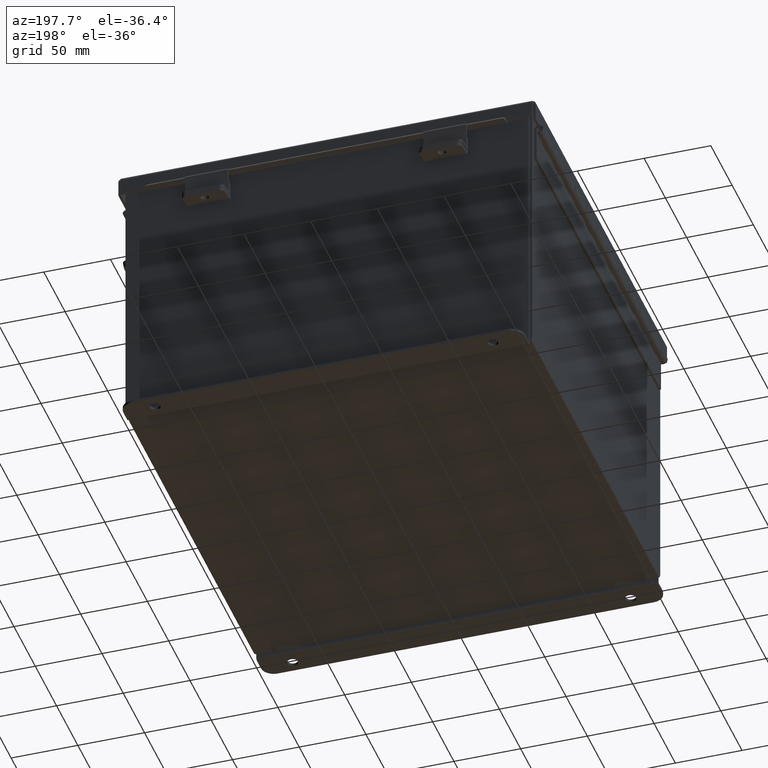
[diagram: clean part render]
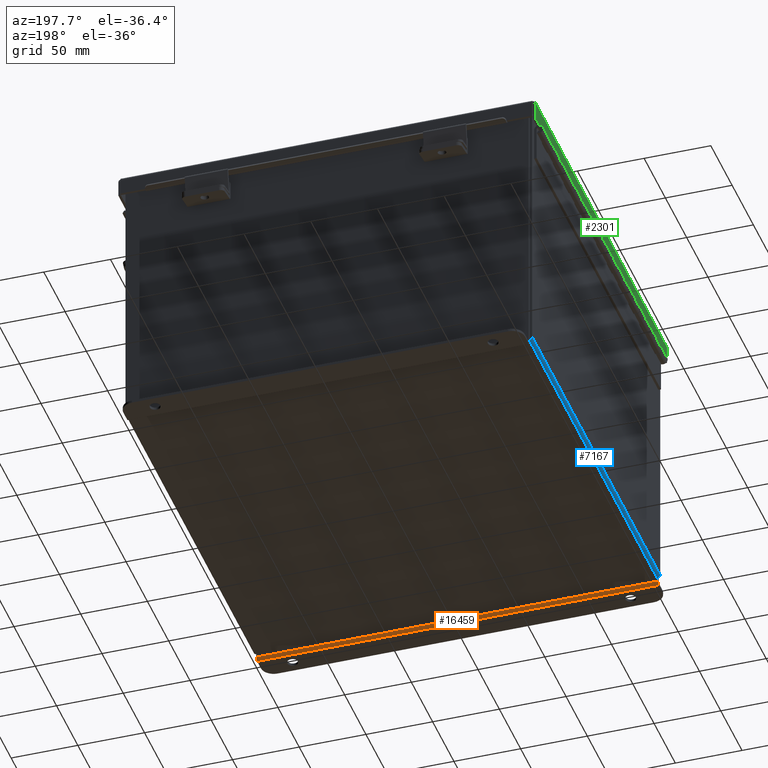
[diagram: same view with three faces highlighted in distinct colors, each labeled with its STEP entity id]
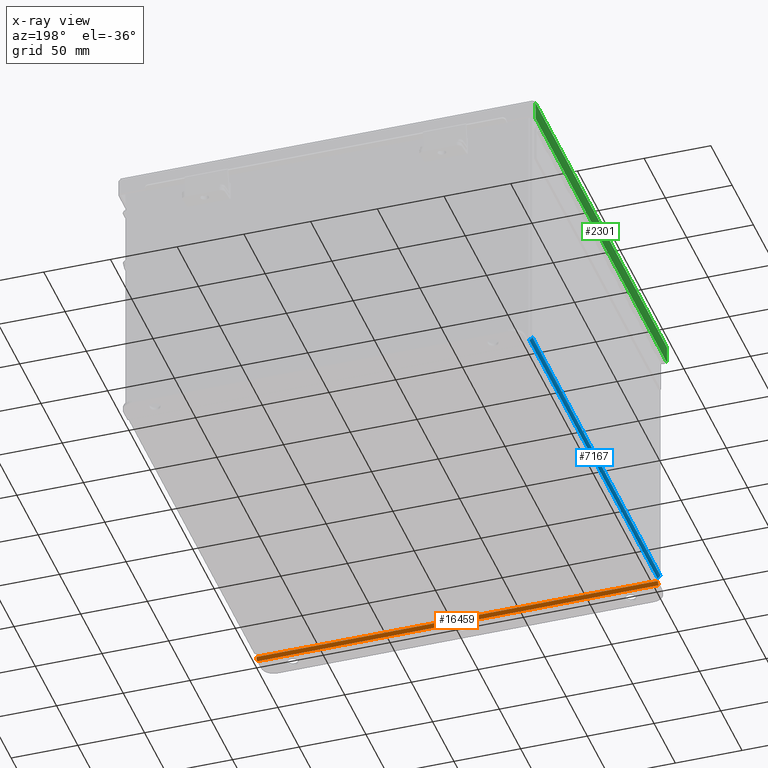
[diagram: x-ray of the same camera — body ghosted, the three highlighted faces saturated]
A machine part, auxiliary view with three faces highlighted in distinct colors.
The next image is the same camera in x-ray (body ghosted, the three faces saturated) — at least one of them is partly hidden behind the body in this view.
Their STEP definitions:

[orange] entity #16459 — the highlighted cylindrical surface (edge-blend (fillet) strip) has radius 2.2276 mm, axis along (1, 0, -0).
#671 = EDGE_CURVE ( 'NONE', #6055, #13040, #9622, .T. ) ;
#1352 = EDGE_LOOP ( 'NONE', ( #8213, #2336, #8028, #17304 ) ) ;
#1880 = CARTESIAN_POINT ( 'NONE',  ( -5.925300000000000000, 0.01300000000000001500, -4.099299999999999500 ) ) ;
#2038 = LINE ( 'NONE', #8633, #5213 ) ;
#2336 = ORIENTED_EDGE ( 'NONE', *, *, #671, .F. ) ;
#3248 = DIRECTION ( 'NONE',  ( 0.0000000000000000000, 0.0000000000000000000, 1.000000000000000000 ) ) ;
#3983 = DIRECTION ( 'NONE',  ( -1.000000000000000000, 0.0000000000000000000, 0.0000000000000000000 ) ) ;
#4164 = AXIS2_PLACEMENT_3D ( 'NONE', #7215, #16684, #8568 ) ;
#4871 = CIRCLE ( 'NONE', #4164, 0.08770000000000026400 ) ;
#4966 = DIRECTION ( 'NONE',  ( 1.000000000000000000, -0.0000000000000000000, -0.0000000000000000000 ) ) ;
#5213 = VECTOR ( 'NONE', #12768, 39.37007874015748100 ) ;
#5224 = CYLINDRICAL_SURFACE ( 'NONE', #11463, 0.08770000000000026400 ) ;
#6055 = VERTEX_POINT ( 'NONE', #16621 ) ;
#6398 = CARTESIAN_POINT ( 'NONE',  ( 5.925299999999999100, 0.01299999999999968500, -4.187000000000000300 ) ) ;
#6404 = EDGE_CURVE ( 'NONE', #13040, #12628, #2038, .T. ) ;
#7215 = CARTESIAN_POINT ( 'NONE',  ( 5.925299999999999100, 0.01300000000000001500, -4.099299999999999500 ) ) ;
#7829 = EDGE_CURVE ( 'NONE', #6055, #10143, #13433, .T. ) ;
#8028 = ORIENTED_EDGE ( 'NONE', *, *, #7829, .T. ) ;
#8062 = CARTESIAN_POINT ( 'NONE',  ( -5.925300000000000000, -0.07470000000000008600, -4.099299999999999500 ) ) ;
#8213 = ORIENTED_EDGE ( 'NONE', *, *, #6404, .F. ) ;
#8506 = CARTESIAN_POINT ( 'NONE',  ( 5.925299999999999100, -0.07470000000000008600, -4.099299999999999500 ) ) ;
#8568 = DIRECTION ( 'NONE',  ( 0.0000000000000000000, 0.0000000000000000000, 1.000000000000000000 ) ) ;
#8633 = CARTESIAN_POINT ( 'NONE',  ( -5.925300000000001800, -0.07470000000000008600, -4.099299999999999500 ) ) ;
#9622 = CIRCLE ( 'NONE', #13881, 0.08770000000000026400 ) ;
#10143 = VERTEX_POINT ( 'NONE', #6398 ) ;
#11364 = DIRECTION ( 'NONE',  ( -1.000000000000000000, 0.0000000000000000000, 0.0000000000000000000 ) ) ;
#11463 = AXIS2_PLACEMENT_3D ( 'NONE', #16103, #3983, #12078 ) ;
#12078 = DIRECTION ( 'NONE',  ( 0.0000000000000000000, -3.699053013085864000E-015, -1.000000000000000000 ) ) ;
#12438 = FACE_OUTER_BOUND ( 'NONE', #1352, .T. ) ;
#12628 = VERTEX_POINT ( 'NONE', #8506 ) ;
#12768 = DIRECTION ( 'NONE',  ( 1.000000000000000000, -0.0000000000000000000, -0.0000000000000000000 ) ) ;
#13032 = VECTOR ( 'NONE', #4966, 39.37007874015748100 ) ;
#13040 = VERTEX_POINT ( 'NONE', #8062 ) ;
#13433 = LINE ( 'NONE', #17097, #13032 ) ;
#13881 = AXIS2_PLACEMENT_3D ( 'NONE', #1880, #11364, #3248 ) ;
#14386 = EDGE_CURVE ( 'NONE', #12628, #10143, #4871, .T. ) ;
#16103 = CARTESIAN_POINT ( 'NONE',  ( -5.925300000000001800, 0.01300000000000001500, -4.099299999999999500 ) ) ;
#16459 = ADVANCED_FACE ( 'NONE', ( #12438 ), #5224, .T. ) ;
#16621 = CARTESIAN_POINT ( 'NONE',  ( -5.925300000000000000, 0.01300000000000062700, -4.187000000000000300 ) ) ;
#16684 = DIRECTION ( 'NONE',  ( 1.000000000000000000, -0.0000000000000000000, -0.0000000000000000000 ) ) ;
#17097 = CARTESIAN_POINT ( 'NONE',  ( 5.925299999999999100, 0.01300000000000062700, -4.187000000000000300 ) ) ;
#17304 = ORIENTED_EDGE ( 'NONE', *, *, #14386, .F. ) ;

[blue] entity #7167 — the highlighted cylindrical surface (edge-blend (fillet) strip) has radius 2.2276 mm, axis along (0, -1, 0).
#863 = DIRECTION ( 'NONE',  ( -1.000000000000000000, 0.0000000000000000000, -3.480030137311043200E-015 ) ) ;
#913 = CIRCLE ( 'NONE', #13771, 0.08770000000000009700 ) ;
#1553 = EDGE_CURVE ( 'NONE', #9221, #9605, #913, .T. ) ;
#1601 = CYLINDRICAL_SURFACE ( 'NONE', #16545, 0.08770000000000026400 ) ;
#2263 = LINE ( 'NONE', #12592, #15816 ) ;
#2322 = CIRCLE ( 'NONE', #13004, 0.08770000000000009700 ) ;
#3381 = CARTESIAN_POINT ( 'NONE',  ( -5.912299999999998300, -5.925299999999999100, 0.01300000000000015200 ) ) ;
#3708 = CARTESIAN_POINT ( 'NONE',  ( -5.999999999999998200, -5.925299999999999100, 0.01299999999999984700 ) ) ;
#3930 = CARTESIAN_POINT ( 'NONE',  ( -5.999999999999998200, 5.925300000000000000, 0.01299999999999984700 ) ) ;
#4374 = EDGE_CURVE ( 'NONE', #4593, #9221, #4552, .T. ) ;
#4552 = LINE ( 'NONE', #14986, #10906 ) ;
#4584 = CARTESIAN_POINT ( 'NONE',  ( -5.912299999999998300, 5.925300000000000000, -0.07470000000000000300 ) ) ;
#4593 = VERTEX_POINT ( 'NONE', #8705 ) ;
#4742 = DIRECTION ( 'NONE',  ( 0.0000000000000000000, 0.0000000000000000000, -1.000000000000000000 ) ) ;
#5116 = ORIENTED_EDGE ( 'NONE', *, *, #1553, .F. ) ;
#5471 = DIRECTION ( 'NONE',  ( -0.0000000000000000000, 1.000000000000000000, -0.0000000000000000000 ) ) ;
#6070 = FACE_OUTER_BOUND ( 'NONE', #15462, .T. ) ;
#6525 = ORIENTED_EDGE ( 'NONE', *, *, #14048, .F. ) ;
#6893 = DIRECTION ( 'NONE',  ( -0.0000000000000000000, 1.000000000000000000, -0.0000000000000000000 ) ) ;
#6946 = EDGE_CURVE ( 'NONE', #11310, #9605, #2263, .T. ) ;
#7167 = ADVANCED_FACE ( 'NONE', ( #6070 ), #1601, .T. ) ;
#7458 = ORIENTED_EDGE ( 'NONE', *, *, #4374, .F. ) ;
#8557 = DIRECTION ( 'NONE',  ( -0.0000000000000000000, 1.000000000000000000, -0.0000000000000000000 ) ) ;
#8705 = CARTESIAN_POINT ( 'NONE',  ( -5.912299999999998300, -5.925299999999999100, -0.07469999999999994700 ) ) ;
#9221 = VERTEX_POINT ( 'NONE', #4584 ) ;
#9605 = VERTEX_POINT ( 'NONE', #3930 ) ;
#10339 = CARTESIAN_POINT ( 'NONE',  ( -5.912299999999998300, -5.925300000000000000, 0.01300000000000015200 ) ) ;
#10906 = VECTOR ( 'NONE', #6893, 39.37007874015748100 ) ;
#11310 = VERTEX_POINT ( 'NONE', #3708 ) ;
#12592 = CARTESIAN_POINT ( 'NONE',  ( -5.999999999999998200, 5.925300000000000000, 0.01299999999999984700 ) ) ;
#12842 = ORIENTED_EDGE ( 'NONE', *, *, #6946, .T. ) ;
#12852 = DIRECTION ( 'NONE',  ( 0.0000000000000000000, -1.000000000000000000, 0.0000000000000000000 ) ) ;
#13004 = AXIS2_PLACEMENT_3D ( 'NONE', #3381, #12852, #4742 ) ;
#13057 = DIRECTION ( 'NONE',  ( 0.0000000000000000000, -1.000000000000000000, 0.0000000000000000000 ) ) ;
#13554 = CARTESIAN_POINT ( 'NONE',  ( -5.912299999999998300, 5.925300000000000000, 0.01300000000000015200 ) ) ;
#13771 = AXIS2_PLACEMENT_3D ( 'NONE', #13554, #5471, #14929 ) ;
#14048 = EDGE_CURVE ( 'NONE', #11310, #4593, #2322, .T. ) ;
#14929 = DIRECTION ( 'NONE',  ( 0.0000000000000000000, 0.0000000000000000000, -1.000000000000000000 ) ) ;
#14986 = CARTESIAN_POINT ( 'NONE',  ( -5.912299999999998300, -5.925300000000000000, -0.07469999999999994700 ) ) ;
#15462 = EDGE_LOOP ( 'NONE', ( #7458, #6525, #12842, #5116 ) ) ;
#15816 = VECTOR ( 'NONE', #8557, 39.37007874015748100 ) ;
#16545 = AXIS2_PLACEMENT_3D ( 'NONE', #10339, #13057, #863 ) ;

[green] entity #2301 — the highlighted planar face has unit normal (1, -0, 0).
#21 = VECTOR ( 'NONE', #11615, 39.37007874015748100 ) ;
#459 = CARTESIAN_POINT ( 'NONE',  ( 6.156250000000000000, 6.074478932188137400, 0.01299999999999981200 ) ) ;
#815 = VECTOR ( 'NONE', #14450, 39.37007874015748100 ) ;
#902 = CARTESIAN_POINT ( 'NONE',  ( 6.156250000000000000, -6.074478932188137400, -2.966658842474588900E-016 ) ) ;
#1507 = CARTESIAN_POINT ( 'NONE',  ( 6.156250000000002700, -6.074478932188137400, 0.5503000000000000100 ) ) ;
#2301 = ADVANCED_FACE ( 'NONE', ( #14574 ), #11498, .F. ) ;
#2455 = EDGE_CURVE ( 'NONE', #5807, #17221, #12025, .T. ) ;
#3397 = CARTESIAN_POINT ( 'NONE',  ( 6.156250000000000000, -1.325930851584782900E-017, -2.470993480592342900E-014 ) ) ;
#3476 = ORIENTED_EDGE ( 'NONE', *, *, #5725, .F. ) ;
#3635 = LINE ( 'NONE', #8893, #21 ) ;
#4364 = LINE ( 'NONE', #17252, #7551 ) ;
#4758 = DIRECTION ( 'NONE',  ( -1.000000000000000000, 0.0000000000000000000, 3.971430846686188400E-015 ) ) ;
#5094 = DIRECTION ( 'NONE',  ( -0.0000000000000000000, -1.000000000000000000, -0.0000000000000000000 ) ) ;
#5725 = EDGE_CURVE ( 'NONE', #14395, #5807, #11384, .T. ) ;
#5807 = VERTEX_POINT ( 'NONE', #16094 ) ;
#6631 = EDGE_LOOP ( 'NONE', ( #3476, #14842, #15472, #10938 ) ) ;
#6655 = VERTEX_POINT ( 'NONE', #12055 ) ;
#7240 = EDGE_CURVE ( 'NONE', #14395, #6655, #4364, .T. ) ;
#7551 = VECTOR ( 'NONE', #10509, 39.37007874015748100 ) ;
#8893 = CARTESIAN_POINT ( 'NONE',  ( 6.156250000000002700, -1.325930851584782900E-017, 0.5503000000000000100 ) ) ;
#10509 = DIRECTION ( 'NONE',  ( 3.971430846686188400E-015, 0.0000000000000000000, 1.000000000000000000 ) ) ;
#10938 = ORIENTED_EDGE ( 'NONE', *, *, #2455, .F. ) ;
#11384 = LINE ( 'NONE', #14567, #11804 ) ;
#11498 = PLANE ( 'NONE',  #17322 ) ;
#11615 = DIRECTION ( 'NONE',  ( 0.0000000000000000000, -1.000000000000000000, 0.0000000000000000000 ) ) ;
#11804 = VECTOR ( 'NONE', #5094, 39.37007874015748100 ) ;
#12025 = LINE ( 'NONE', #902, #815 ) ;
#12055 = CARTESIAN_POINT ( 'NONE',  ( 6.156250000000002700, 6.074478932188137400, 0.5503000000000000100 ) ) ;
#13465 = EDGE_CURVE ( 'NONE', #6655, #17221, #3635, .T. ) ;
#14218 = DIRECTION ( 'NONE',  ( 3.971430846686188400E-015, 0.0000000000000000000, 1.000000000000000000 ) ) ;
#14395 = VERTEX_POINT ( 'NONE', #459 ) ;
#14450 = DIRECTION ( 'NONE',  ( 3.971430846686188400E-015, -0.0000000000000000000, 1.000000000000000000 ) ) ;
#14567 = CARTESIAN_POINT ( 'NONE',  ( 6.156250000000000000, -6.156249999999998200, 0.01299999999999981200 ) ) ;
#14574 = FACE_OUTER_BOUND ( 'NONE', #6631, .T. ) ;
#14842 = ORIENTED_EDGE ( 'NONE', *, *, #7240, .T. ) ;
#15472 = ORIENTED_EDGE ( 'NONE', *, *, #13465, .T. ) ;
#16094 = CARTESIAN_POINT ( 'NONE',  ( 6.156250000000000000, -6.074478932188137400, 0.01299999999999981200 ) ) ;
#17221 = VERTEX_POINT ( 'NONE', #1507 ) ;
#17252 = CARTESIAN_POINT ( 'NONE',  ( 6.156250000000000000, 6.074478932188137400, -2.470993480592342900E-014 ) ) ;
#17322 = AXIS2_PLACEMENT_3D ( 'NONE', #3397, #4758, #14218 ) ;